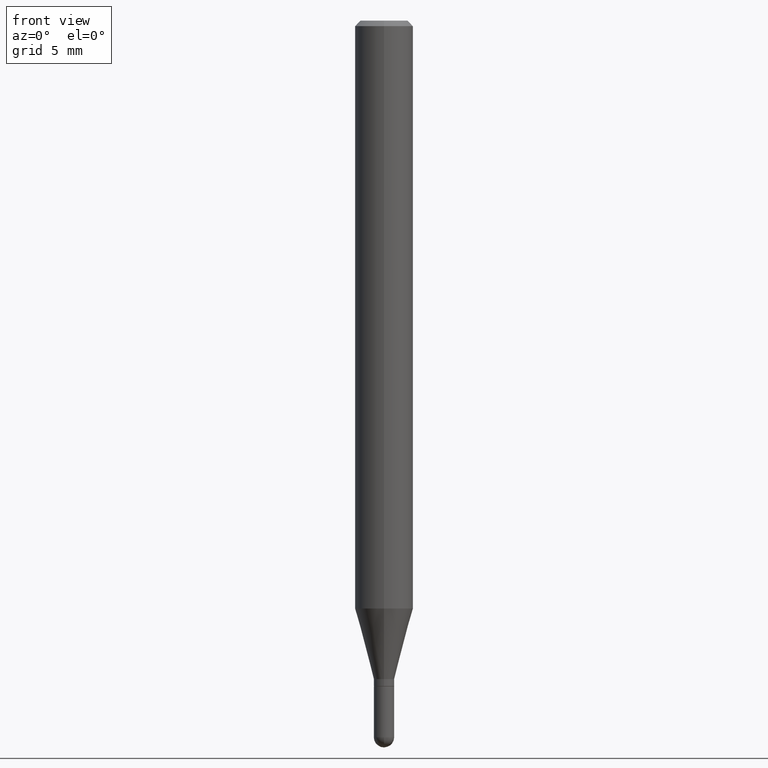
[diagram: clean part render]
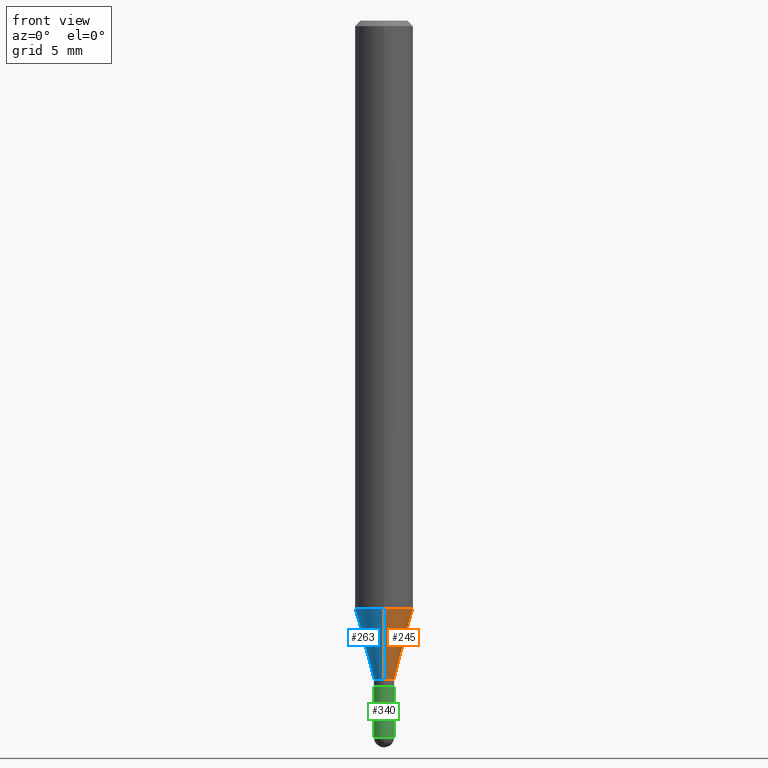
[diagram: same view with three faces highlighted in distinct colors, each labeled with its STEP entity id]
A machine part, front view with three faces highlighted in distinct colors.
Their STEP definitions:

[orange] entity #245 — the highlighted conical surface has half-angle 15 deg.
#7 = DIRECTION ( 'NONE',  ( -6.982962677686266711E-15, -1.000000000000000000, 0.000000000000000000 ) ) ;
#8 = ORIENTED_EDGE ( 'NONE', *, *, #302, .T. ) ;
#22 = CARTESIAN_POINT ( 'NONE',  ( -5.499083108677546915E-16, -0.07875000000000557943, -1.592418998652472384 ) ) ;
#35 = CARTESIAN_POINT ( 'NONE',  ( 4.361579605101607956E-29, -6.226933826297307491E-15, -1.783500000000000085 ) ) ;
#43 = DIRECTION ( 'NONE',  ( -6.982962677686264344E-15, -1.000000000000000000, 3.469013325287953293E-15 ) ) ;
#50 = ORIENTED_EDGE ( 'NONE', *, *, #272, .F. ) ;
#57 = VERTEX_POINT ( 'NONE', #63 ) ;
#63 = CARTESIAN_POINT ( 'NONE',  ( -1.923806217702105461E-16, -0.02755000000000587534, -1.783500000000000085 ) ) ;
#74 = VECTOR ( 'NONE', #168, 39.37007874015748854 ) ;
#76 = CONICAL_SURFACE ( 'NONE', #391, 0.02754999999999964769, 0.2617993877991500740 ) ;
#84 = EDGE_LOOP ( 'NONE', ( #369, #8, #50, #327 ) ) ;
#89 = LINE ( 'NONE', #325, #74 ) ;
#99 = CIRCLE ( 'NONE', #169, 0.07875000000000000056 ) ;
#110 = DIRECTION ( 'NONE',  ( -2.445517019961652946E-29, 3.491412293971016589E-15, 1.000000000000000000 ) ) ;
#116 = CARTESIAN_POINT ( 'NONE',  ( 5.595524044111174559E-16, 0.07874999999999440781, -1.592418998652472828 ) ) ;
#128 = CARTESIAN_POINT ( 'NONE',  ( 3.776534640565333034E-16, 0.02754999999999342003, -1.783500000000000085 ) ) ;
#153 = EDGE_CURVE ( 'NONE', #57, #286, #433, .T. ) ;
#158 = CARTESIAN_POINT ( 'NONE',  ( 4.361579605101607956E-29, -6.226933826297307491E-15, -1.783500000000000085 ) ) ;
#164 = CARTESIAN_POINT ( 'NONE',  ( 3.894287764114914031E-29, -5.559791269048257593E-15, -1.592418998652472606 ) ) ;
#168 = DIRECTION ( 'NONE',  ( 1.839019923739598738E-15, 0.2588190451025247363, 0.9659258262890673130 ) ) ;
#169 = AXIS2_PLACEMENT_3D ( 'NONE', #164, #402, #43 ) ;
#183 = VERTEX_POINT ( 'NONE', #116 ) ;
#190 = CIRCLE ( 'NONE', #253, 0.02754999999999964769 ) ;
#198 = DIRECTION ( 'NONE',  ( -1.807323732225328562E-15, -0.2588190451025179639, 0.9659258262890690894 ) ) ;
#231 = EDGE_CURVE ( 'NONE', #57, #440, #190, .T. ) ;
#245 = ADVANCED_FACE ( 'NONE', ( #313 ), #76, .T. ) ;
#253 = AXIS2_PLACEMENT_3D ( 'NONE', #158, #110, #7 ) ;
#272 = EDGE_CURVE ( 'NONE', #286, #183, #99, .T. ) ;
#276 = DIRECTION ( 'NONE',  ( -6.982962677686266711E-15, -1.000000000000000000, 0.000000000000000000 ) ) ;
#286 = VERTEX_POINT ( 'NONE', #22 ) ;
#302 = EDGE_CURVE ( 'NONE', #440, #183, #89, .T. ) ;
#313 = FACE_OUTER_BOUND ( 'NONE', #84, .T. ) ;
#325 = CARTESIAN_POINT ( 'NONE',  ( 1.957545237019486824E-16, 0.02754999999999342003, -1.783500000000000085 ) ) ;
#327 = ORIENTED_EDGE ( 'NONE', *, *, #153, .F. ) ;
#358 = CARTESIAN_POINT ( 'NONE',  ( -1.923806217702105461E-16, -0.02755000000000587534, -1.783500000000000085 ) ) ;
#369 = ORIENTED_EDGE ( 'NONE', *, *, #231, .T. ) ;
#391 = AXIS2_PLACEMENT_3D ( 'NONE', #35, #435, #276 ) ;
#402 = DIRECTION ( 'NONE',  ( -2.445517019961652946E-29, 3.491412293971016589E-15, 1.000000000000000000 ) ) ;
#433 = LINE ( 'NONE', #358, #503 ) ;
#435 = DIRECTION ( 'NONE',  ( -2.445517019961652946E-29, 3.491412293971016589E-15, 1.000000000000000000 ) ) ;
#440 = VERTEX_POINT ( 'NONE', #128 ) ;
#503 = VECTOR ( 'NONE', #198, 39.37007874015748854 ) ;

[blue] entity #263 — the highlighted conical surface has half-angle 15 deg.
#10 = AXIS2_PLACEMENT_3D ( 'NONE', #196, #82, #471 ) ;
#22 = CARTESIAN_POINT ( 'NONE',  ( -5.499083108677546915E-16, -0.07875000000000557943, -1.592418998652472384 ) ) ;
#32 = CIRCLE ( 'NONE', #386, 0.02754999999999964769 ) ;
#36 = EDGE_LOOP ( 'NONE', ( #444, #329, #356, #338 ) ) ;
#57 = VERTEX_POINT ( 'NONE', #63 ) ;
#58 = EDGE_CURVE ( 'NONE', #183, #286, #261, .T. ) ;
#63 = CARTESIAN_POINT ( 'NONE',  ( -1.923806217702105461E-16, -0.02755000000000587534, -1.783500000000000085 ) ) ;
#74 = VECTOR ( 'NONE', #168, 39.37007874015748854 ) ;
#82 = DIRECTION ( 'NONE',  ( -2.445517019961652946E-29, 3.491412293971016589E-15, 1.000000000000000000 ) ) ;
#89 = LINE ( 'NONE', #325, #74 ) ;
#116 = CARTESIAN_POINT ( 'NONE',  ( 5.595524044111174559E-16, 0.07874999999999440781, -1.592418998652472828 ) ) ;
#128 = CARTESIAN_POINT ( 'NONE',  ( 3.776534640565333034E-16, 0.02754999999999342003, -1.783500000000000085 ) ) ;
#153 = EDGE_CURVE ( 'NONE', #57, #286, #433, .T. ) ;
#168 = DIRECTION ( 'NONE',  ( 1.839019923739598738E-15, 0.2588190451025247363, 0.9659258262890673130 ) ) ;
#183 = VERTEX_POINT ( 'NONE', #116 ) ;
#196 = CARTESIAN_POINT ( 'NONE',  ( 4.361579605101607956E-29, -6.226933826297307491E-15, -1.783500000000000085 ) ) ;
#198 = DIRECTION ( 'NONE',  ( -1.807323732225328562E-15, -0.2588190451025179639, 0.9659258262890690894 ) ) ;
#233 = CONICAL_SURFACE ( 'NONE', #10, 0.02754999999999964769, 0.2617993877991500740 ) ;
#234 = CARTESIAN_POINT ( 'NONE',  ( 4.361579605101607956E-29, -6.226933826297307491E-15, -1.783500000000000085 ) ) ;
#236 = EDGE_CURVE ( 'NONE', #440, #57, #32, .T. ) ;
#261 = CIRCLE ( 'NONE', #465, 0.07875000000000000056 ) ;
#263 = ADVANCED_FACE ( 'NONE', ( #323 ), #233, .T. ) ;
#279 = DIRECTION ( 'NONE',  ( -6.982962677686266711E-15, -1.000000000000000000, 0.000000000000000000 ) ) ;
#286 = VERTEX_POINT ( 'NONE', #22 ) ;
#302 = EDGE_CURVE ( 'NONE', #440, #183, #89, .T. ) ;
#323 = FACE_OUTER_BOUND ( 'NONE', #36, .T. ) ;
#325 = CARTESIAN_POINT ( 'NONE',  ( 1.957545237019486824E-16, 0.02754999999999342003, -1.783500000000000085 ) ) ;
#329 = ORIENTED_EDGE ( 'NONE', *, *, #236, .T. ) ;
#338 = ORIENTED_EDGE ( 'NONE', *, *, #58, .F. ) ;
#356 = ORIENTED_EDGE ( 'NONE', *, *, #153, .T. ) ;
#358 = CARTESIAN_POINT ( 'NONE',  ( -1.923806217702105461E-16, -0.02755000000000587534, -1.783500000000000085 ) ) ;
#379 = CARTESIAN_POINT ( 'NONE',  ( 3.894287764114914031E-29, -5.559791269048257593E-15, -1.592418998652472606 ) ) ;
#386 = AXIS2_PLACEMENT_3D ( 'NONE', #234, #510, #279 ) ;
#420 = DIRECTION ( 'NONE',  ( -6.982962677686264344E-15, -1.000000000000000000, 3.469013325287953293E-15 ) ) ;
#433 = LINE ( 'NONE', #358, #503 ) ;
#440 = VERTEX_POINT ( 'NONE', #128 ) ;
#444 = ORIENTED_EDGE ( 'NONE', *, *, #302, .F. ) ;
#465 = AXIS2_PLACEMENT_3D ( 'NONE', #379, #494, #420 ) ;
#471 = DIRECTION ( 'NONE',  ( -6.982962677686266711E-15, -1.000000000000000000, 0.000000000000000000 ) ) ;
#494 = DIRECTION ( 'NONE',  ( -2.445517019961652946E-29, 3.491412293971016589E-15, 1.000000000000000000 ) ) ;
#503 = VECTOR ( 'NONE', #198, 39.37007874015748854 ) ;
#510 = DIRECTION ( 'NONE',  ( -2.445517019961652946E-29, 3.491412293971016589E-15, 1.000000000000000000 ) ) ;

[green] entity #340 — the highlighted cylindrical surface (edge-blend (fillet) strip) has radius 0.6998 mm, axis along (-0, 0, 1).
#2 = EDGE_LOOP ( 'NONE', ( #88, #244, #318, #353, #144 ) ) ;
#12 = VERTEX_POINT ( 'NONE', #252 ) ;
#15 = CARTESIAN_POINT ( 'NONE',  ( 0.02755000000000000851, -1.923806217702566944E-16, 1.343386701731780684E-30 ) ) ;
#23 = DIRECTION ( 'NONE',  ( -2.445468806185136597E-29, 3.491481338843145583E-15, 1.000000000000000000 ) ) ;
#24 = EDGE_CURVE ( 'NONE', #331, #166, #157, .T. ) ;
#46 = CARTESIAN_POINT ( 'NONE',  ( -0.02755000000000000157, -6.340385829645931250E-15, -1.803099999999999925 ) ) ;
#55 = DIRECTION ( 'NONE',  ( -2.445468806185136597E-29, 3.491481338843145583E-15, 1.000000000000000000 ) ) ;
#73 = CARTESIAN_POINT ( 'NONE',  ( 4.746532679365040693E-29, -6.776790704627602522E-15, -1.940949999999999953 ) ) ;
#88 = ORIENTED_EDGE ( 'NONE', *, *, #165, .F. ) ;
#93 = DIRECTION ( 'NONE',  ( 1.000000000000000000, -6.982962677686256455E-15, 0.000000000000000000 ) ) ;
#95 = CYLINDRICAL_SURFACE ( 'NONE', #132, 0.02755000000000000851 ) ;
#132 = AXIS2_PLACEMENT_3D ( 'NONE', #485, #415, #404 ) ;
#144 = ORIENTED_EDGE ( 'NONE', *, *, #24, .F. ) ;
#155 = CARTESIAN_POINT ( 'NONE',  ( 0.02755000000000000851, -6.728520975118096173E-15, -1.940949999999999953 ) ) ;
#157 = CIRCLE ( 'NONE', #259, 0.02755000000000000157 ) ;
#165 = EDGE_CURVE ( 'NONE', #322, #331, #317, .T. ) ;
#166 = VERTEX_POINT ( 'NONE', #273 ) ;
#175 = LINE ( 'NONE', #15, #457 ) ;
#178 = CARTESIAN_POINT ( 'NONE',  ( -0.02755000000000000851, -6.340385829645931250E-15, -1.940949999999999953 ) ) ;
#192 = CIRCLE ( 'NONE', #401, 0.02755000000000000851 ) ;
#207 = DIRECTION ( 'NONE',  ( -2.445468806185136597E-29, 3.491481338843145583E-15, 1.000000000000000000 ) ) ;
#232 = DIRECTION ( 'NONE',  ( 1.000000000000000000, -6.982962677686254878E-15, 0.000000000000000000 ) ) ;
#237 = VERTEX_POINT ( 'NONE', #155 ) ;
#238 = CARTESIAN_POINT ( 'NONE',  ( -0.02755000000000000851, 1.957545237019076617E-16, -1.355166617365226740E-30 ) ) ;
#244 = ORIENTED_EDGE ( 'NONE', *, *, #280, .T. ) ;
#251 = DIRECTION ( 'NONE',  ( 1.000000000000000000, -6.982962677686254878E-15, 0.000000000000000000 ) ) ;
#252 = CARTESIAN_POINT ( 'NONE',  ( -1.957545237018603300E-16, -0.02755000000000680863, -1.940949999999999953 ) ) ;
#259 = AXIS2_PLACEMENT_3D ( 'NONE', #295, #23, #93 ) ;
#273 = CARTESIAN_POINT ( 'NONE',  ( 0.02755000000000000157, -6.487870623838331454E-15, -1.803099999999999925 ) ) ;
#280 = EDGE_CURVE ( 'NONE', #322, #12, #366, .T. ) ;
#295 = CARTESIAN_POINT ( 'NONE',  ( 4.409424804432419562E-29, -6.295490002068075450E-15, -1.803099999999999925 ) ) ;
#300 = AXIS2_PLACEMENT_3D ( 'NONE', #73, #207, #232 ) ;
#317 = LINE ( 'NONE', #238, #321 ) ;
#318 = ORIENTED_EDGE ( 'NONE', *, *, #333, .T. ) ;
#321 = VECTOR ( 'NONE', #351, 39.37007874015748143 ) ;
#322 = VERTEX_POINT ( 'NONE', #178 ) ;
#331 = VERTEX_POINT ( 'NONE', #46 ) ;
#333 = EDGE_CURVE ( 'NONE', #12, #237, #192, .T. ) ;
#334 = FACE_OUTER_BOUND ( 'NONE', #2, .T. ) ;
#340 = ADVANCED_FACE ( 'NONE', ( #334 ), #95, .T. ) ;
#351 = DIRECTION ( 'NONE',  ( -2.445468806185136877E-29, 3.491481338843145188E-15, 1.000000000000000000 ) ) ;
#353 = ORIENTED_EDGE ( 'NONE', *, *, #423, .T. ) ;
#364 = CARTESIAN_POINT ( 'NONE',  ( 4.746532679365040693E-29, -6.776790704627602522E-15, -1.940949999999999953 ) ) ;
#366 = CIRCLE ( 'NONE', #300, 0.02755000000000000851 ) ;
#401 = AXIS2_PLACEMENT_3D ( 'NONE', #364, #55, #251 ) ;
#404 = DIRECTION ( 'NONE',  ( 1.000000000000000000, -6.982962677686265922E-15, 4.876176775795935793E-29 ) ) ;
#415 = DIRECTION ( 'NONE',  ( -2.445468806185136597E-29, 3.491481338843145583E-15, 1.000000000000000000 ) ) ;
#423 = EDGE_CURVE ( 'NONE', #237, #166, #175, .T. ) ;
#457 = VECTOR ( 'NONE', #487, 39.37007874015748143 ) ;
#485 = CARTESIAN_POINT ( 'NONE',  ( 0.000000000000000000, 0.000000000000000000, 0.000000000000000000 ) ) ;
#487 = DIRECTION ( 'NONE',  ( -2.445468806185136877E-29, 3.491481338843145188E-15, 1.000000000000000000 ) ) ;